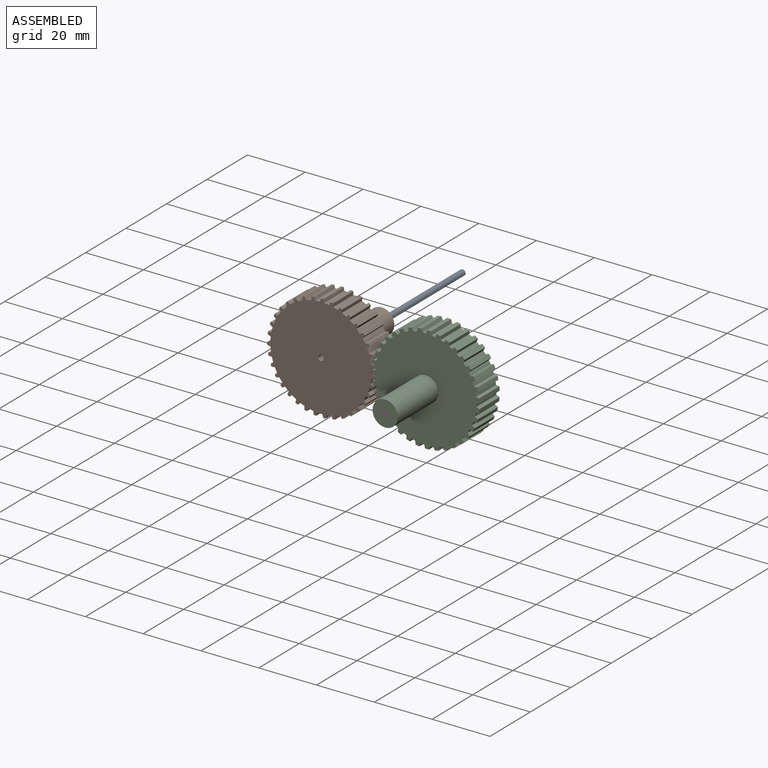
[diagram: assembled view]
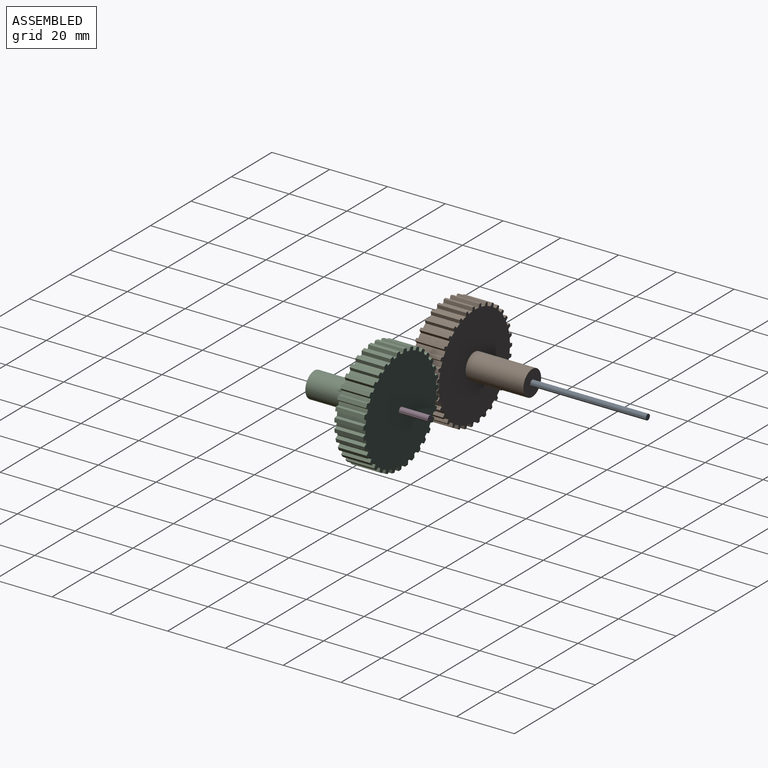
[diagram: assembled view, second angle]
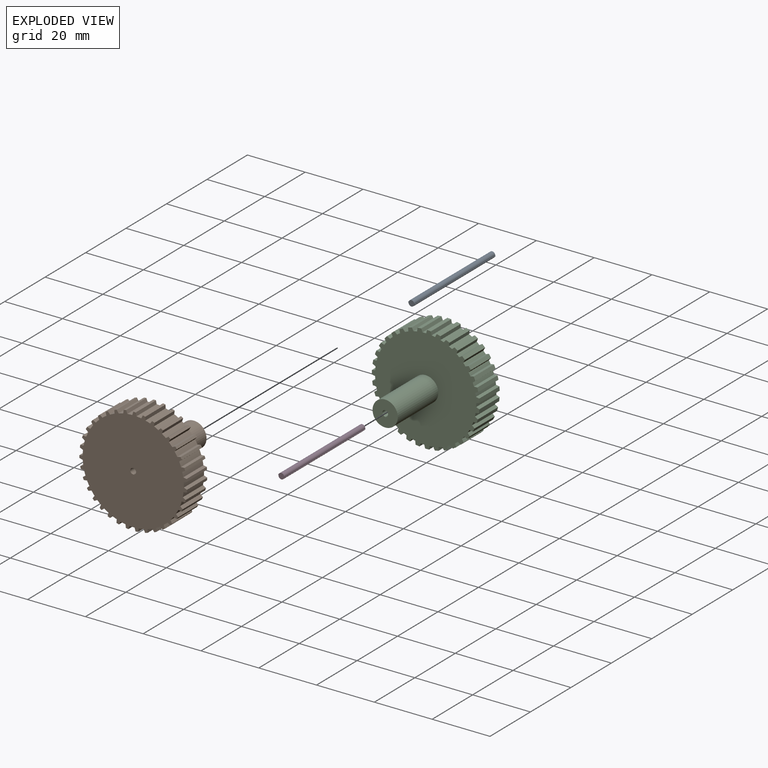
[diagram: exploded view]
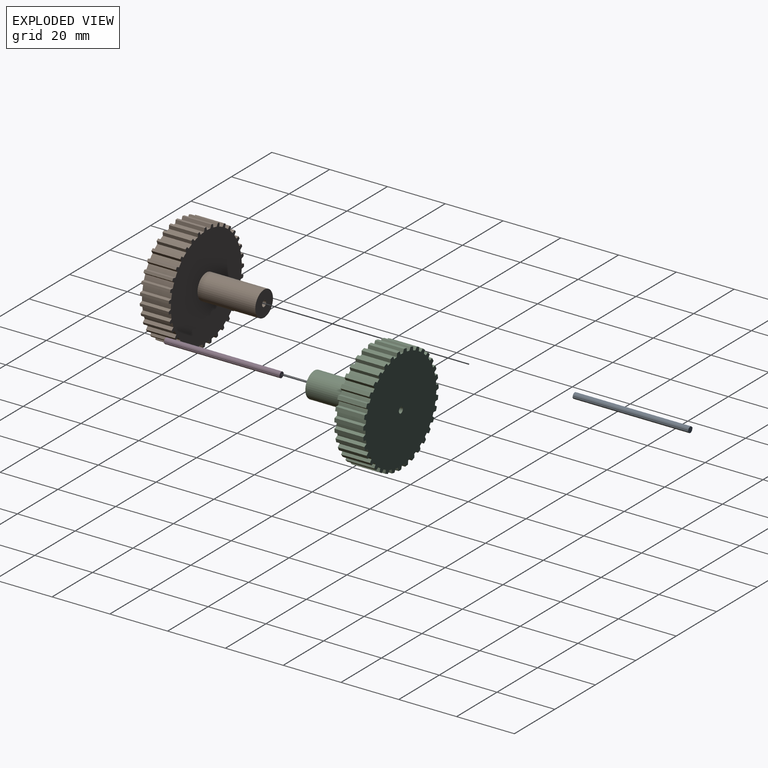
[diagram: exploded view, second angle]
ASSEMBLY  parts=4 mates=2
PART A: 10 faces, bbox 2x40x2.3 mm
  f0: cylinder r=1mm len=40mm, axis (0,1,0), area 119.7mm2, adj f1,f7,f8,f9
  f1: plane 40x0.15mm, normal (1,0,0), area 5.8mm2, adj f0,f2,f8,f9
  f2: plane 40x0.15mm, normal (0,0,1), area 6mm2, adj f1,f3,f8,f9
  f3: plane 40x0.15mm, normal (-1,0,0), area 5.8mm2, adj f2,f4,f8,f9
  f4: cylinder r=1mm len=40mm, axis (0,1,0), area 119.7mm2, adj f3,f5,f8,f9
  f5: plane 40x0.15mm, normal (-1,0,0), area 5.8mm2, adj f4,f6,f8,f9
  f6: plane 40x0.15mm, normal (0,0,-1), area 6mm2, adj f5,f7,f8,f9
  f7: plane 40x0.15mm, normal (1,0,0), area 5.8mm2, adj f0,f6,f8,f9
  f8: plane 2.29x2mm, normal (0,-1,0), area 3.2mm2, adj f0,f1,f2,f3,f4,f5,f6,f7
  f9: plane 2.29x2mm, normal (0,1,0), area 3.2mm2, adj f0,f1,f2,f3,f4,f5,f6,f7
PART B: 152 faces, bbox 37.3x30x37.2 mm
  f0: plane 37.25x37.22mm, normal (0,1,0), area 1004.6mm2, adj f2,f3,f4,f5,f6,f7,f8,f9
  f1: plane 8.75x8.75mm, normal (0,-1,0), area 56.9mm2, adj f2,f39,f145,f146,f147,f148,f149,f150
  f2: cylinder r=1mm len=30mm, axis (0,1,0), area 89.7mm2, adj f0,f1,f147,f150
  f3: cylinder r=17.5mm len=10mm, axis (0,1,0), area 17mm2, adj f0,f38,f90,f93
  f4: cylinder r=17.5mm len=10mm, axis (0,1,0), area 17mm2, adj f0,f38,f87,f89
  f5: cylinder r=17.5mm len=10mm, axis (0,1,0), area 17mm2, adj f0,f38,f84,f86
  f6: cylinder r=17.5mm len=10mm, axis (0,1,0), area 17mm2, adj f0,f38,f81,f83
  f7: cylinder r=17.5mm len=10mm, axis (0,1,0), area 17mm2, adj f0,f38,f78,f80
  f8: cylinder r=17.5mm len=10mm, axis (0,1,0), area 17mm2, adj f0,f38,f75,f77
  f9: cylinder r=17.5mm len=10mm, axis (0,1,0), area 17mm2, adj f0,f38,f72,f74
  f10: cylinder r=17.5mm len=10mm, axis (0,1,0), area 17mm2, adj f0,f38,f69,f71
  f11: cylinder r=17.5mm len=10mm, axis (0,1,0), area 17mm2, adj f0,f38,f66,f68
  f12: cylinder r=17.5mm len=10mm, axis (0,1,0), area 17mm2, adj f0,f38,f63,f65
  f13: cylinder r=17.5mm len=10mm, axis (0,1,0), area 17mm2, adj f0,f38,f60,f62
  f14: cylinder r=17.5mm len=10mm, axis (0,1,0), area 17mm2, adj f0,f38,f57,f59
  f15: cylinder r=17.5mm len=10mm, axis (0,1,0), area 17mm2, adj f0,f38,f54,f56
  f16: cylinder r=17.5mm len=10mm, axis (0,1,0), area 17mm2, adj f0,f38,f51,f53
  f17: cylinder r=17.5mm len=10mm, axis (0,1,0), area 17mm2, adj f0,f38,f48,f50
  f18: cylinder r=17.5mm len=10mm, axis (0,1,0), area 17mm2, adj f0,f38,f45,f47
  f19: cylinder r=17.5mm len=10mm, axis (0,1,0), area 17mm2, adj f0,f38,f44,f143
  f20: cylinder r=17.5mm len=10mm, axis (0,1,0), area 17mm2, adj f0,f38,f141,f142
  f21: cylinder r=17.5mm len=10mm, axis (0,1,0), area 17mm2, adj f0,f38,f138,f140
  f22: cylinder r=17.5mm len=10mm, axis (0,1,0), area 17mm2, adj f0,f38,f135,f137
  f23: cylinder r=17.5mm len=10mm, axis (0,1,0), area 17mm2, adj f0,f38,f132,f134
  f24: cylinder r=17.5mm len=10mm, axis (0,1,0), area 17mm2, adj f0,f38,f129,f131
  f25: cylinder r=17.5mm len=10mm, axis (0,1,0), area 17mm2, adj f0,f38,f126,f128
  f26: cylinder r=17.5mm len=10mm, axis (0,1,0), area 17mm2, adj f0,f38,f123,f125
  f27: cylinder r=17.5mm len=10mm, axis (0,1,0), area 17mm2, adj f0,f38,f120,f122
  f28: cylinder r=17.5mm len=10mm, axis (0,1,0), area 17mm2, adj f0,f38,f117,f119
  f29: cylinder r=17.5mm len=10mm, axis (0,1,0), area 17mm2, adj f0,f38,f114,f116
  f30: cylinder r=17.5mm len=10mm, axis (0,1,0), area 17mm2, adj f0,f38,f111,f113
  f31: cylinder r=17.5mm len=10mm, axis (0,1,0), area 17mm2, adj f0,f38,f108,f110
  f32: cylinder r=17.5mm len=10mm, axis (0,1,0), area 17mm2, adj f0,f38,f105,f107
  f33: cylinder r=17.5mm len=10mm, axis (0,1,0), area 17mm2, adj f0,f38,f102,f104
  f34: cylinder r=17.5mm len=10mm, axis (0,1,0), area 17mm2, adj f0,f38,f99,f101
  f35: cylinder r=17.5mm len=10mm, axis (0,1,0), area 17mm2, adj f0,f38,f96,f98
  f36: cylinder r=17.5mm len=10mm, axis (0,1,0), area 17mm2, adj f0,f38,f41,f95
  f37: cylinder r=17.5mm len=10mm, axis (0,1,0), area 17mm2, adj f0,f38,f40,f92
  f38: plane 37.25x37.22mm, normal (0,-1,0), area 947.7mm2, adj f3,f4,f5,f6,f7,f8,f9,f10
  f39: cylinder r=4.38mm len=20mm, axis (0,1,0), area 549.8mm2, adj f1,f38
  f40: plane 10x1.14mm, normal (-0.98,0,0.22), area 11.7mm2, adj f0,f37,f38,f42
  f41: plane 10x1.14mm, normal (0.96,0,0.26), area 11.8mm2, adj f0,f36,f38,f42
  f42: plane 10x0.87mm, normal (0,0,1), area 8.7mm2, adj f0,f38,f40,f41
  f43: plane 10x0.87mm, normal (-0.09,0,-1), area 8.7mm2, adj f0,f38,f44,f45
  f44: plane 10x1.11mm, normal (0.95,0,-0.31), area 11.7mm2, adj f0,f19,f38,f43
  f45: plane 10x1.16mm, normal (-0.98,0,-0.18), area 11.8mm2, adj f0,f18,f38,f43
  f46: plane 10x0.84mm, normal (-0.27,0,-0.96), area 8.7mm2, adj f0,f38,f47,f48
  f47: plane 10x1.03mm, normal (0.88,0,-0.47), area 11.7mm2, adj f0,f18,f38,f46
  f48: plane 10x1.18mm, normal (-1,0,0), area 11.8mm2, adj f0,f17,f38,f46
  f49: plane 10x0.79mm, normal (-0.43,0,-0.9), area 8.7mm2, adj f0,f38,f50,f51
  f50: plane 10x0.92mm, normal (0.78,0,-0.62), area 11.7mm2, adj f0,f17,f38,f49
  f51: plane 10x1.16mm, normal (-0.98,0,0.18), area 11.8mm2, adj f0,f16,f38,f49
  f52: plane 10x0.71mm, normal (-0.59,0,-0.81), area 8.7mm2, adj f0,f38,f53,f54
  f53: plane 10x0.88mm, normal (0.66,0,-0.75), area 11.7mm2, adj f0,f16,f38,f52
  f54: plane 10x1.11mm, normal (-0.94,0,0.35), area 11.8mm2, adj f0,f15,f38,f52
  f55: plane 10x0.63mm, normal (-0.72,0,-0.69), area 8.7mm2, adj f0,f38,f56,f57
  f56: plane 10x1mm, normal (0.51,0,-0.86), area 11.7mm2, adj f0,f15,f38,f55
  f57: plane 10x1.01mm, normal (-0.86,0,0.51), area 11.8mm2, adj f0,f14,f38,f55
  f58: plane 10x0.73mm, normal (-0.83,0,-0.55), area 8.7mm2, adj f0,f38,f59,f60
  f59: plane 10x1.09mm, normal (0.35,0,-0.94), area 11.7mm2, adj f0,f14,f38,f58
  f60: plane 10x0.89mm, normal (-0.75,0,0.66), area 11.8mm2, adj f0,f13,f38,f58
  f61: plane 10x0.8mm, normal (-0.92,0,-0.39), area 8.7mm2, adj f0,f38,f62,f63
  f62: plane 10x1.15mm, normal (0.18,0,-0.98), area 11.7mm2, adj f0,f13,f38,f61
  f63: plane 10x0.93mm, normal (-0.62,0,0.78), area 11.8mm2, adj f0,f12,f38,f61
  f64: plane 10x0.85mm, normal (-0.97,0,-0.22), area 8.7mm2, adj f0,f38,f65,f66
  f65: plane 10x1.17mm, normal (0,0,-1), area 11.7mm2, adj f0,f12,f38,f64
  f66: plane 10x1.04mm, normal (-0.47,0,0.88), area 11.8mm2, adj f0,f11,f38,f64
  f67: plane 10x0.87mm, normal (-1,0,-0.04), area 8.7mm2, adj f0,f38,f68,f69
  f68: plane 10x1.15mm, normal (-0.18,0,-0.98), area 11.7mm2, adj f0,f11,f38,f67
  f69: plane 10x1.13mm, normal (-0.31,0,0.95), area 11.8mm2, adj f0,f10,f38,f67
  f70: plane 10x0.86mm, normal (-0.99,0,0.13), area 8.7mm2, adj f0,f38,f71,f72
  f71: plane 10x1.1mm, normal (-0.35,0,-0.94), area 11.7mm2, adj f0,f10,f38,f70
  f72: plane 10x1.17mm, normal (-0.13,0,0.99), area 11.8mm2, adj f0,f9,f38,f70
  f73: plane 10x0.83mm, normal (-0.95,0,0.31), area 8.7mm2, adj f0,f38,f74,f75
  f74: plane 10x1.01mm, normal (-0.51,0,-0.86), area 11.7mm2, adj f0,f9,f38,f73
  f75: plane 10x1.18mm, normal (0.05,0,1), area 11.8mm2, adj f0,f8,f38,f73
  f76: plane 10x0.77mm, normal (-0.88,0,0.47), area 8.7mm2, adj f0,f38,f77,f78
  f77: plane 10x0.88mm, normal (-0.66,0,-0.75), area 11.7mm2, adj f0,f8,f38,f76
  f78: plane 10x1.15mm, normal (0.22,0,0.97), area 11.8mm2, adj f0,f7,f38,f76
  f79: plane 10x0.68mm, normal (-0.78,0,0.62), area 8.7mm2, adj f0,f38,f80,f81
  f80: plane 10x0.91mm, normal (-0.78,0,-0.62), area 11.7mm2, adj f0,f7,f38,f79
  f81: plane 10x1.09mm, normal (0.39,0,0.92), area 11.8mm2, adj f0,f6,f38,f79
  f82: plane 10x0.66mm, normal (-0.66,0,0.75), area 8.7mm2, adj f0,f38,f83,f84
  f83: plane 10x1.03mm, normal (-0.88,0,-0.48), area 11.7mm2, adj f0,f6,f38,f82
  f84: plane 10x0.99mm, normal (0.55,0,0.83), area 11.8mm2, adj f0,f5,f38,f82
  f85: plane 10x0.75mm, normal (-0.51,0,0.86), area 8.7mm2, adj f0,f38,f86,f87
  f86: plane 10x1.11mm, normal (-0.95,0,-0.31), area 11.7mm2, adj f0,f5,f38,f85
  f87: plane 10x0.85mm, normal (0.69,0,0.72), area 11.8mm2, adj f0,f4,f38,f85
  f88: plane 10x0.82mm, normal (-0.35,0,0.94), area 8.7mm2, adj f0,f38,f89,f90
  f89: plane 10x1.16mm, normal (-0.99,0,-0.14), area 11.7mm2, adj f0,f4,f38,f88
  f90: plane 10x0.96mm, normal (0.81,0,0.59), area 11.8mm2, adj f0,f3,f38,f88
  f91: plane 10x0.86mm, normal (-0.18,0,0.98), area 8.7mm2, adj f0,f38,f92,f93
  f92: plane 10x1.07mm, normal (0.9,0,0.43), area 11.8mm2, adj f0,f37,f38,f91
  f93: plane 10x1.17mm, normal (-1,0,0.04), area 11.7mm2, adj f0,f3,f38,f91
  f94: plane 10x0.86mm, normal (0.18,0,0.98), area 8.7mm2, adj f0,f38,f95,f96
  f95: plane 10x1.08mm, normal (-0.92,0,0.39), area 11.7mm2, adj f0,f36,f38,f94
  f96: plane 10x1.18mm, normal (1,0,0.09), area 11.8mm2, adj f0,f35,f38,f94
  f97: plane 10x0.82mm, normal (0.35,0,0.94), area 8.7mm2, adj f0,f38,f98,f99
  f98: plane 10x0.98mm, normal (-0.84,0,0.55), area 11.7mm2, adj f0,f35,f38,f97
  f99: plane 10x1.18mm, normal (1,0,-0.09), area 11.8mm2, adj f0,f34,f38,f97
  f100: plane 10x0.75mm, normal (0.51,0,0.86), area 8.7mm2, adj f0,f38,f101,f102
  f101: plane 10x0.85mm, normal (-0.72,0,0.69), area 11.7mm2, adj f0,f34,f38,f100
  f102: plane 10x1.14mm, normal (0.96,0,-0.27), area 11.8mm2, adj f0,f33,f38,f100
  f103: plane 10x0.66mm, normal (0.66,0,0.75), area 8.7mm2, adj f0,f38,f104,f105
  f104: plane 10x0.95mm, normal (-0.59,0,0.81), area 11.7mm2, adj f0,f33,f38,f103
  f105: plane 10x1.06mm, normal (0.9,0,-0.44), area 11.8mm2, adj f0,f32,f38,f103
  f106: plane 10x0.68mm, normal (0.78,0,0.62), area 8.7mm2, adj f0,f38,f107,f108
  f107: plane 10x1.05mm, normal (-0.44,0,0.9), area 11.7mm2, adj f0,f32,f38,f106
  f108: plane 10x0.96mm, normal (0.81,0,-0.59), area 11.8mm2, adj f0,f31,f38,f106
  f109: plane 10x0.77mm, normal (0.88,0,0.47), area 8.7mm2, adj f0,f38,f110,f111
  f110: plane 10x1.13mm, normal (-0.27,0,0.96), area 11.7mm2, adj f0,f31,f38,f109
  f111: plane 10x0.86mm, normal (0.69,0,-0.72), area 11.8mm2, adj f0,f30,f38,f109
  f112: plane 10x0.83mm, normal (0.95,0,0.31), area 8.7mm2, adj f0,f38,f113,f114
  f113: plane 10x1.16mm, normal (-0.09,0,1), area 11.7mm2, adj f0,f30,f38,f112
  f114: plane 10x0.99mm, normal (0.55,0,-0.84), area 11.8mm2, adj f0,f29,f38,f112
  f115: plane 10x0.86mm, normal (0.99,0,0.13), area 8.7mm2, adj f0,f38,f116,f117
  f116: plane 10x1.17mm, normal (0.09,0,1), area 11.7mm2, adj f0,f29,f38,f115
  f117: plane 10x1.09mm, normal (0.39,0,-0.92), area 11.8mm2, adj f0,f28,f38,f115
  f118: plane 10x0.87mm, normal (1,0,-0.04), area 8.7mm2, adj f0,f38,f119,f120
  f119: plane 10x1.13mm, normal (0.26,0,0.96), area 11.7mm2, adj f0,f28,f38,f118
  f120: plane 10x1.15mm, normal (0.22,0,-0.98), area 11.8mm2, adj f0,f27,f38,f118
  f121: plane 10x0.85mm, normal (0.97,0,-0.22), area 8.7mm2, adj f0,f38,f122,f123
  f122: plane 10x1.05mm, normal (0.43,0,0.9), area 11.7mm2, adj f0,f27,f38,f121
  f123: plane 10x1.18mm, normal (0.04,0,-1), area 11.8mm2, adj f0,f26,f38,f121
  f124: plane 10x0.8mm, normal (0.92,0,-0.39), area 8.7mm2, adj f0,f38,f125,f126
  f125: plane 10x0.95mm, normal (0.59,0,0.81), area 11.7mm2, adj f0,f26,f38,f124
  f126: plane 10x1.17mm, normal (-0.14,0,-0.99), area 11.8mm2, adj f0,f25,f38,f124
  f127: plane 10x0.73mm, normal (0.83,0,-0.55), area 8.7mm2, adj f0,f38,f128,f129
  f128: plane 10x0.84mm, normal (0.72,0,0.69), area 11.7mm2, adj f0,f25,f38,f127
  f129: plane 10x1.12mm, normal (-0.31,0,-0.95), area 11.8mm2, adj f0,f24,f38,f127
  f130: plane 10x0.63mm, normal (0.72,0,-0.69), area 8.7mm2, adj f0,f38,f131,f132
  f131: plane 10x0.98mm, normal (0.83,0,0.55), area 11.7mm2, adj f0,f24,f38,f130
  f132: plane 10x1.04mm, normal (-0.48,0,-0.88), area 11.8mm2, adj f0,f23,f38,f130
  f133: plane 10x0.71mm, normal (0.59,0,-0.81), area 8.7mm2, adj f0,f38,f134,f135
  f134: plane 10x1.07mm, normal (0.92,0,0.39), area 11.7mm2, adj f0,f23,f38,f133
  f135: plane 10x0.92mm, normal (-0.63,0,-0.78), area 11.8mm2, adj f0,f22,f38,f133
  f136: plane 10x0.79mm, normal (0.43,0,-0.9), area 8.7mm2, adj f0,f38,f137,f138
  f137: plane 10x1.14mm, normal (0.97,0,0.22), area 11.7mm2, adj f0,f22,f38,f136
  f138: plane 10x0.89mm, normal (-0.75,0,-0.66), area 11.8mm2, adj f0,f21,f38,f136
  f139: plane 10x0.84mm, normal (0.27,0,-0.96), area 8.7mm2, adj f0,f38,f140,f141
  f140: plane 10x1.17mm, normal (1,0,0.05), area 11.7mm2, adj f0,f21,f38,f139
  f141: plane 10x1.02mm, normal (-0.86,0,-0.51), area 11.8mm2, adj f0,f20,f38,f139
  f142: plane 10x1.16mm, normal (0.99,0,-0.13), area 11.7mm2, adj f0,f20,f38,f144
  f143: plane 10x1.11mm, normal (-0.94,0,-0.35), area 11.8mm2, adj f0,f19,f38,f144
  f144: plane 10x0.87mm, normal (0.09,0,-1), area 8.7mm2, adj f0,f38,f142,f143
  f145: cylinder r=1mm len=30mm, axis (0,1,0), area 89.7mm2, adj f0,f1,f146,f151
  f146: plane 30x0.15mm, normal (1,0,0), area 4.5mm2, adj f0,f1,f145,f148
  f147: plane 30x0.15mm, normal (-1,0,0), area 4.5mm2, adj f0,f1,f2,f148
  f148: plane 30x0.15mm, normal (0,0,1), area 4.5mm2, adj f0,f1,f146,f147
  f149: plane 30x0.15mm, normal (0,0,-1), area 4.5mm2, adj f0,f1,f150,f151
  f150: plane 30x0.14mm, normal (-1,0,0), area 4.3mm2, adj f0,f1,f2,f149
  f151: plane 30x0.14mm, normal (1,0,0), area 4.3mm2, adj f0,f1,f145,f149
PART C: 152 faces, bbox 37.3x30x37.2 mm
  f0: cylinder r=17.5mm len=10mm, axis (0,1,0), area 12.2mm2, adj f35,f36,f147,f149
  f1: cylinder r=17.5mm len=10mm, axis (0,1,0), area 12.2mm2, adj f35,f36,f144,f146
  f2: cylinder r=17.5mm len=10mm, axis (0,1,0), area 12.2mm2, adj f35,f36,f141,f143
  f3: cylinder r=17.5mm len=10mm, axis (0,1,0), area 12.2mm2, adj f35,f36,f138,f140
  f4: cylinder r=17.5mm len=10mm, axis (0,1,0), area 12.2mm2, adj f35,f36,f135,f137
  f5: cylinder r=17.5mm len=10mm, axis (0,1,0), area 12.2mm2, adj f35,f36,f132,f134
  f6: cylinder r=17.5mm len=10mm, axis (0,1,0), area 12.2mm2, adj f35,f36,f129,f131
  f7: cylinder r=17.5mm len=10mm, axis (0,1,0), area 12.2mm2, adj f35,f36,f126,f128
  f8: cylinder r=17.5mm len=10mm, axis (0,1,0), area 12.2mm2, adj f35,f36,f123,f125
  f9: cylinder r=17.5mm len=10mm, axis (0,1,0), area 12.2mm2, adj f35,f36,f120,f122
  f10: cylinder r=17.5mm len=10mm, axis (0,1,0), area 12.2mm2, adj f35,f36,f117,f119
  f11: cylinder r=17.5mm len=10mm, axis (0,1,0), area 12.2mm2, adj f35,f36,f114,f116
  f12: cylinder r=17.5mm len=10mm, axis (0,1,0), area 12.2mm2, adj f35,f36,f111,f113
  f13: cylinder r=17.5mm len=10mm, axis (0,1,0), area 12.2mm2, adj f35,f36,f108,f110
  f14: cylinder r=17.5mm len=10mm, axis (0,1,0), area 12.2mm2, adj f35,f36,f105,f107
  f15: cylinder r=17.5mm len=10mm, axis (0,1,0), area 12.2mm2, adj f35,f36,f102,f104
  f16: cylinder r=17.5mm len=10mm, axis (0,1,0), area 12.2mm2, adj f35,f36,f99,f101
  f17: cylinder r=17.5mm len=10mm, axis (0,1,0), area 12.2mm2, adj f35,f36,f96,f98
  f18: cylinder r=17.5mm len=10mm, axis (0,1,0), area 12.2mm2, adj f35,f36,f93,f95
  f19: cylinder r=17.5mm len=10mm, axis (0,1,0), area 12.2mm2, adj f35,f36,f90,f92
  f20: cylinder r=17.5mm len=10mm, axis (0,1,0), area 12.2mm2, adj f35,f36,f87,f89
  f21: cylinder r=17.5mm len=10mm, axis (0,1,0), area 12.2mm2, adj f35,f36,f84,f86
  f22: cylinder r=17.5mm len=10mm, axis (0,1,0), area 12.2mm2, adj f35,f36,f81,f83
  f23: cylinder r=17.5mm len=10mm, axis (0,1,0), area 12.2mm2, adj f35,f36,f78,f80
  f24: cylinder r=17.5mm len=10mm, axis (0,1,0), area 12.2mm2, adj f35,f36,f75,f77
  f25: cylinder r=17.5mm len=10mm, axis (0,1,0), area 12.2mm2, adj f35,f36,f72,f74
  f26: cylinder r=17.5mm len=10mm, axis (0,1,0), area 12.2mm2, adj f35,f36,f69,f71
  f27: cylinder r=17.5mm len=10mm, axis (0,1,0), area 12.2mm2, adj f35,f36,f66,f68
  f28: cylinder r=17.5mm len=10mm, axis (0,1,0), area 12.2mm2, adj f35,f36,f63,f65
  f29: cylinder r=17.5mm len=10mm, axis (0,1,0), area 12.2mm2, adj f35,f36,f60,f62
  f30: cylinder r=17.5mm len=10mm, axis (0,1,0), area 12.2mm2, adj f35,f36,f57,f59
  f31: cylinder r=17.5mm len=10mm, axis (0,1,0), area 12.2mm2, adj f35,f36,f54,f56
  f32: cylinder r=17.5mm len=10mm, axis (0,1,0), area 12.2mm2, adj f35,f36,f51,f53
  f33: cylinder r=17.5mm len=10mm, axis (0,1,0), area 12.2mm2, adj f35,f36,f48,f50
  f34: cylinder r=17.5mm len=10mm, axis (0,1,0), area 12.2mm2, adj f35,f36,f47,f150
  f35: plane 37.28x37.25mm, normal (0,-1,0), area 966.4mm2, adj f0,f1,f2,f3,f4,f5,f6,f7
  f36: plane 37.28x37.25mm, normal (0,1,0), area 1023.4mm2, adj f0,f1,f2,f3,f4,f5,f6,f7
  f37: cylinder r=4.38mm len=20mm, axis (0,1,0), area 549.8mm2, adj f35,f38
  f38: plane 8.75x8.75mm, normal (0,-1,0), area 56.9mm2, adj f37,f39,f40,f41,f42,f43,f44,f45
  f39: cylinder r=1mm len=30mm, axis (0,-1,0), area 89.7mm2, adj f36,f38,f40,f46
  f40: plane 30x0.15mm, normal (-1,0,0), area 4.4mm2, adj f36,f38,f39,f41
  f41: plane 30x0.15mm, normal (0,0,-1), area 4.5mm2, adj f36,f38,f40,f42
  f42: plane 30x0.15mm, normal (1,0,0), area 4.4mm2, adj f36,f38,f41,f43
  f43: cylinder r=1mm len=30mm, axis (0,-1,0), area 89.7mm2, adj f36,f38,f42,f44
  f44: plane 30x0.15mm, normal (1,0,0), area 4.4mm2, adj f36,f38,f43,f45
  f45: plane 30x0.15mm, normal (0,0,1), area 4.5mm2, adj f36,f38,f44,f46
  f46: plane 30x0.15mm, normal (-1,0,0), area 4.4mm2, adj f36,f38,f39,f45
  f47: plane 10x1.16mm, normal (-0.97,0,0.24), area 11.9mm2, adj f34,f35,f36,f49
  f48: plane 10x1.15mm, normal (0.97,0,0.26), area 12mm2, adj f33,f35,f36,f49
  f49: plane 10x1.32mm, normal (0,0,1), area 13.2mm2, adj f35,f36,f47,f48
  f50: plane 10x1.09mm, normal (-0.91,0,0.41), area 11.9mm2, adj f33,f35,f36,f52
  f51: plane 10x1.19mm, normal (1,0,0.08), area 12mm2, adj f32,f35,f36,f52
  f52: plane 10x1.3mm, normal (0.18,0,0.98), area 13.2mm2, adj f35,f36,f50,f51
  f53: plane 10x0.98mm, normal (-0.82,0,0.57), area 11.9mm2, adj f32,f35,f36,f55
  f54: plane 10x1.19mm, normal (1,0,-0.1), area 12mm2, adj f31,f35,f36,f55
  f55: plane 10x1.24mm, normal (0.35,0,0.94), area 13.2mm2, adj f35,f36,f53,f54
  f56: plane 10x0.85mm, normal (-0.71,0,0.7), area 11.9mm2, adj f31,f35,f36,f58
  f57: plane 10x1.15mm, normal (0.96,0,-0.27), area 12mm2, adj f30,f35,f36,f58
  f58: plane 10x1.14mm, normal (0.51,0,0.86), area 13.2mm2, adj f35,f36,f56,f57
  f59: plane 10x0.98mm, normal (-0.57,0,0.82), area 11.9mm2, adj f30,f35,f36,f61
  f60: plane 10x1.07mm, normal (0.9,0,-0.44), area 12mm2, adj f29,f35,f36,f61
  f61: plane 10x1mm, normal (0.66,0,0.75), area 13.2mm2, adj f35,f36,f59,f60
  f62: plane 10x1.08mm, normal (-0.42,0,0.91), area 11.9mm2, adj f29,f35,f36,f64
  f63: plane 10x0.96mm, normal (0.8,0,-0.59), area 12mm2, adj f28,f35,f36,f64
  f64: plane 10x1.03mm, normal (0.78,0,0.62), area 13.2mm2, adj f35,f36,f62,f63
  f65: plane 10x1.16mm, normal (-0.25,0,0.97), area 11.9mm2, adj f28,f35,f36,f67
  f66: plane 10x0.87mm, normal (0.69,0,-0.73), area 12mm2, adj f27,f35,f36,f67
  f67: plane 10x1.17mm, normal (0.88,0,0.47), area 13.2mm2, adj f35,f36,f65,f66
  f68: plane 10x1.19mm, normal (-0.07,0,1), area 11.9mm2, adj f27,f35,f36,f70
  f69: plane 10x1mm, normal (0.54,0,-0.84), area 12mm2, adj f26,f35,f36,f70
  f70: plane 10x1.26mm, normal (0.95,0,0.31), area 13.2mm2, adj f35,f36,f68,f69
  f71: plane 10x1.19mm, normal (0.11,0,0.99), area 11.9mm2, adj f26,f35,f36,f73
  f72: plane 10x1.1mm, normal (0.39,0,-0.92), area 12mm2, adj f25,f35,f36,f73
  f73: plane 10x1.31mm, normal (0.99,0,0.13), area 13.2mm2, adj f35,f36,f71,f72
  f74: plane 10x1.15mm, normal (0.28,0,0.96), area 11.9mm2, adj f25,f35,f36,f76
  f75: plane 10x1.17mm, normal (0.22,0,-0.98), area 12mm2, adj f24,f35,f36,f76
  f76: plane 10x1.32mm, normal (1,0,-0.04), area 13.2mm2, adj f35,f36,f74,f75
  f77: plane 10x1.07mm, normal (0.45,0,0.89), area 11.9mm2, adj f24,f35,f36,f79
  f78: plane 10x1.19mm, normal (0.04,0,-1), area 12mm2, adj f23,f35,f36,f79
  f79: plane 10x1.29mm, normal (0.97,0,-0.22), area 13.2mm2, adj f35,f36,f77,f78
  f80: plane 10x0.95mm, normal (0.6,0,0.8), area 11.9mm2, adj f23,f35,f36,f82
  f81: plane 10x1.18mm, normal (-0.14,0,-0.99), area 12mm2, adj f22,f35,f36,f82
  f82: plane 10x1.22mm, normal (0.92,0,-0.39), area 13.2mm2, adj f35,f36,f80,f81
  f83: plane 10x0.88mm, normal (0.74,0,0.68), area 11.9mm2, adj f22,f35,f36,f85
  f84: plane 10x1.13mm, normal (-0.32,0,-0.95), area 12mm2, adj f21,f35,f36,f85
  f85: plane 10x1.1mm, normal (0.83,0,-0.55), area 13.2mm2, adj f35,f36,f83,f84
  f86: plane 10x1.01mm, normal (0.84,0,0.54), area 11.9mm2, adj f21,f35,f36,f88
  f87: plane 10x1.05mm, normal (-0.48,0,-0.88), area 12mm2, adj f20,f35,f36,f88
  f88: plane 10x0.96mm, normal (0.72,0,-0.69), area 13.2mm2, adj f35,f36,f86,f87
  f89: plane 10x1.11mm, normal (0.93,0,0.38), area 11.9mm2, adj f20,f35,f36,f91
  f90: plane 10x0.93mm, normal (-0.63,0,-0.78), area 12mm2, adj f19,f35,f36,f91
  f91: plane 10x1.07mm, normal (0.59,0,-0.81), area 13.2mm2, adj f35,f36,f89,f90
  f92: plane 10x1.17mm, normal (0.98,0,0.21), area 11.9mm2, adj f19,f35,f36,f94
  f93: plane 10x0.91mm, normal (-0.76,0,-0.65), area 12mm2, adj f18,f35,f36,f94
  f94: plane 10x1.19mm, normal (0.43,0,-0.9), area 13.2mm2, adj f35,f36,f92,f93
  f95: plane 10x1.19mm, normal (1,0,0.03), area 11.9mm2, adj f18,f35,f36,f97
  f96: plane 10x1.03mm, normal (-0.86,0,-0.51), area 12mm2, adj f17,f35,f36,f97
  f97: plane 10x1.28mm, normal (0.27,0,-0.96), area 13.2mm2, adj f35,f36,f95,f96
  f98: plane 10x1.18mm, normal (0.99,0,-0.15), area 11.9mm2, adj f17,f35,f36,f100
  f99: plane 10x1.12mm, normal (-0.94,0,-0.34), area 12mm2, adj f16,f35,f36,f100
  f100: plane 10x1.32mm, normal (0.09,0,-1), area 13.2mm2, adj f35,f36,f98,f99
  f101: plane 10x1.13mm, normal (0.95,0,-0.33), area 11.9mm2, adj f16,f35,f36,f103
  f102: plane 10x1.18mm, normal (-0.99,0,-0.17), area 12mm2, adj f15,f35,f36,f103
  f103: plane 10x1.32mm, normal (-0.09,0,-1), area 13.2mm2, adj f35,f36,f101,f102
  f104: plane 10x1.04mm, normal (0.87,0,-0.49), area 11.9mm2, adj f15,f35,f36,f106
  f105: plane 10x1.2mm, normal (-1,0,0.01), area 12mm2, adj f14,f35,f36,f106
  f106: plane 10x1.28mm, normal (-0.27,0,-0.96), area 13.2mm2, adj f35,f36,f104,f105
  f107: plane 10x0.92mm, normal (0.77,0,-0.64), area 11.9mm2, adj f14,f35,f36,f109
  f108: plane 10x1.17mm, normal (-0.98,0,0.19), area 12mm2, adj f13,f35,f36,f109
  f109: plane 10x1.19mm, normal (-0.43,0,-0.9), area 13.2mm2, adj f35,f36,f107,f108
  f110: plane 10x0.91mm, normal (0.64,0,-0.76), area 11.9mm2, adj f13,f35,f36,f112
  f111: plane 10x1.12mm, normal (-0.93,0,0.36), area 12mm2, adj f12,f35,f36,f112
  f112: plane 10x1.07mm, normal (-0.59,0,-0.81), area 13.2mm2, adj f35,f36,f110,f111
  f113: plane 10x1.04mm, normal (0.5,0,-0.87), area 11.9mm2, adj f12,f35,f36,f115
  f114: plane 10x1.02mm, normal (-0.85,0,0.52), area 12mm2, adj f11,f35,f36,f115
  f115: plane 10x0.96mm, normal (-0.72,0,-0.69), area 13.2mm2, adj f35,f36,f113,f114
  f116: plane 10x1.13mm, normal (0.33,0,-0.94), area 11.9mm2, adj f11,f35,f36,f118
  f117: plane 10x0.89mm, normal (-0.75,0,0.66), area 12mm2, adj f10,f35,f36,f118
  f118: plane 10x1.1mm, normal (-0.83,0,-0.55), area 13.2mm2, adj f35,f36,f116,f117
  f119: plane 10x1.18mm, normal (0.16,0,-0.99), area 11.9mm2, adj f10,f35,f36,f121
  f120: plane 10x0.94mm, normal (-0.62,0,0.79), area 12mm2, adj f9,f35,f36,f121
  f121: plane 10x1.22mm, normal (-0.92,0,-0.39), area 13.2mm2, adj f35,f36,f119,f120
  f122: plane 10x1.19mm, normal (-0.02,0,-1), area 11.9mm2, adj f9,f35,f36,f124
  f123: plane 10x1.06mm, normal (-0.47,0,0.88), area 12mm2, adj f8,f35,f36,f124
  f124: plane 10x1.29mm, normal (-0.97,0,-0.22), area 13.2mm2, adj f35,f36,f122,f123
  f125: plane 10x1.17mm, normal (-0.2,0,-0.98), area 11.9mm2, adj f8,f35,f36,f127
  f126: plane 10x1.14mm, normal (-0.3,0,0.95), area 12mm2, adj f7,f35,f36,f127
  f127: plane 10x1.32mm, normal (-1,0,-0.04), area 13.2mm2, adj f35,f36,f125,f126
  f128: plane 10x1.11mm, normal (-0.37,0,-0.93), area 11.9mm2, adj f7,f35,f36,f130
  f129: plane 10x1.19mm, normal (-0.13,0,0.99), area 12mm2, adj f6,f35,f36,f130
  f130: plane 10x1.31mm, normal (-0.99,0,0.13), area 13.2mm2, adj f35,f36,f128,f129
  f131: plane 10x1.01mm, normal (-0.53,0,-0.85), area 11.9mm2, adj f6,f35,f36,f133
  f132: plane 10x1.19mm, normal (0.05,0,1), area 12mm2, adj f5,f35,f36,f133
  f133: plane 10x1.26mm, normal (-0.95,0,0.31), area 13.2mm2, adj f35,f36,f131,f132
  f134: plane 10x0.89mm, normal (-0.67,0,-0.74), area 11.9mm2, adj f5,f35,f36,f136
  f135: plane 10x1.16mm, normal (0.23,0,0.97), area 12mm2, adj f4,f35,f36,f136
  f136: plane 10x1.17mm, normal (-0.88,0,0.47), area 13.2mm2, adj f35,f36,f134,f135
  f137: plane 10x0.95mm, normal (-0.79,0,-0.61), area 11.9mm2, adj f4,f35,f36,f139
  f138: plane 10x1.1mm, normal (0.4,0,0.92), area 12mm2, adj f3,f35,f36,f139
  f139: plane 10x1.03mm, normal (-0.78,0,0.62), area 13.2mm2, adj f35,f36,f137,f138
  f140: plane 10x1.06mm, normal (-0.89,0,-0.46), area 11.9mm2, adj f3,f35,f36,f142
  f141: plane 10x0.99mm, normal (0.56,0,0.83), area 12mm2, adj f2,f35,f36,f142
  f142: plane 10x1mm, normal (-0.66,0,0.75), area 13.2mm2, adj f35,f36,f140,f141
  f143: plane 10x1.14mm, normal (-0.96,0,-0.29), area 11.9mm2, adj f2,f35,f36,f145
  f144: plane 10x0.86mm, normal (0.7,0,0.72), area 12mm2, adj f1,f35,f36,f145
  f145: plane 10x1.14mm, normal (-0.51,0,0.86), area 13.2mm2, adj f35,f36,f143,f144
  f146: plane 10x1.19mm, normal (-0.99,0,-0.12), area 11.9mm2, adj f1,f35,f36,f148
  f147: plane 10x0.97mm, normal (0.81,0,0.58), area 12mm2, adj f0,f35,f36,f148
  f148: plane 10x1.24mm, normal (-0.35,0,0.94), area 13.2mm2, adj f35,f36,f146,f147
  f149: plane 10x1.19mm, normal (-1,0,0.06), area 11.9mm2, adj f0,f35,f36,f151
  f150: plane 10x1.08mm, normal (0.9,0,0.43), area 12mm2, adj f34,f35,f36,f151
  f151: plane 10x1.3mm, normal (-0.18,0,0.98), area 13.2mm2, adj f35,f36,f149,f150
PART D: same geometry as A
PLACE A rot(axis=(0,1,0),98.8deg) t=(-19.61,14.44,19.47)mm
PLACE B rot(axis=(-0.99,0,-0.12),180deg) t=(-28.03,-55.56,52.84)mm
PLACE C rot(axis=(0,1,0),168.3deg) t=(12.77,-45.63,38.32)mm
PLACE D rot(axis=(0,1,0),103.3deg) t=(16.66,-35.63,19.44)mm
MATE revolute C.f0 <-> D.f4  axis (0,-1,0) through (16.66,-75.63,19.44)mm
MATE revolute B.f2 <-> A.f4  axis (0,1,0) through (-19.61,-25.56,19.47)mm
